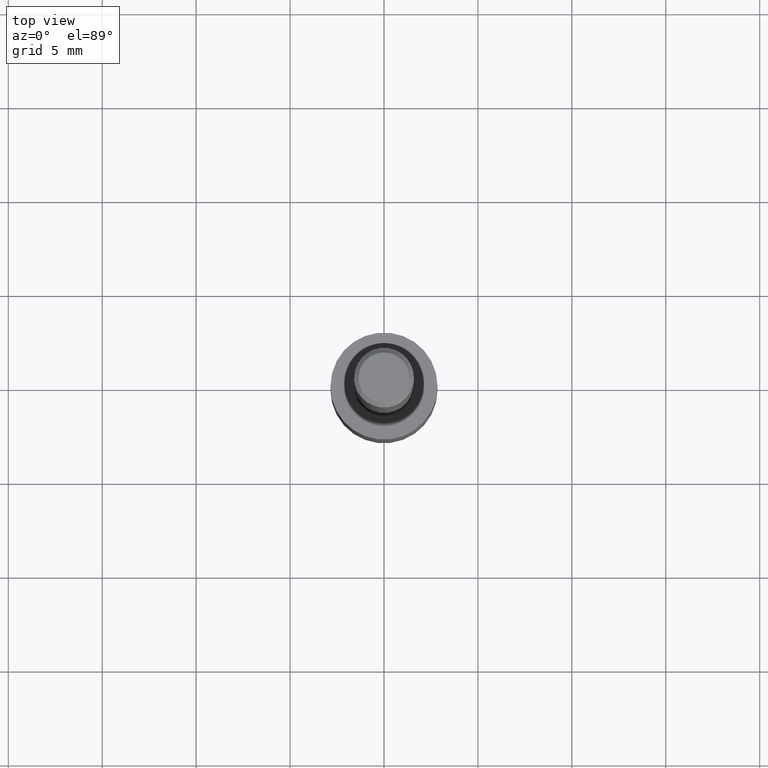
[diagram: clean part render]
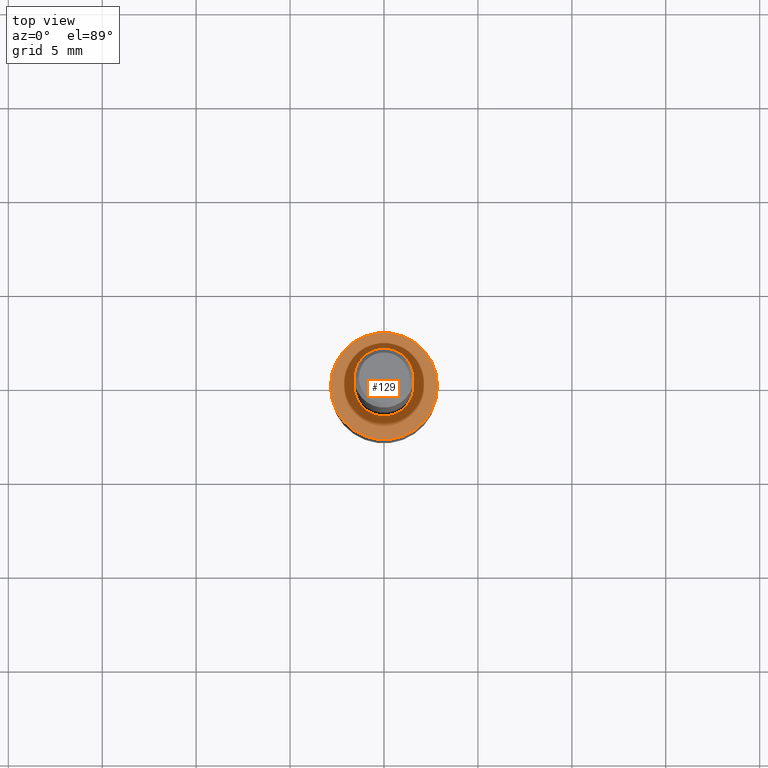
[diagram: same view with one face highlighted and labeled with its STEP entity id]
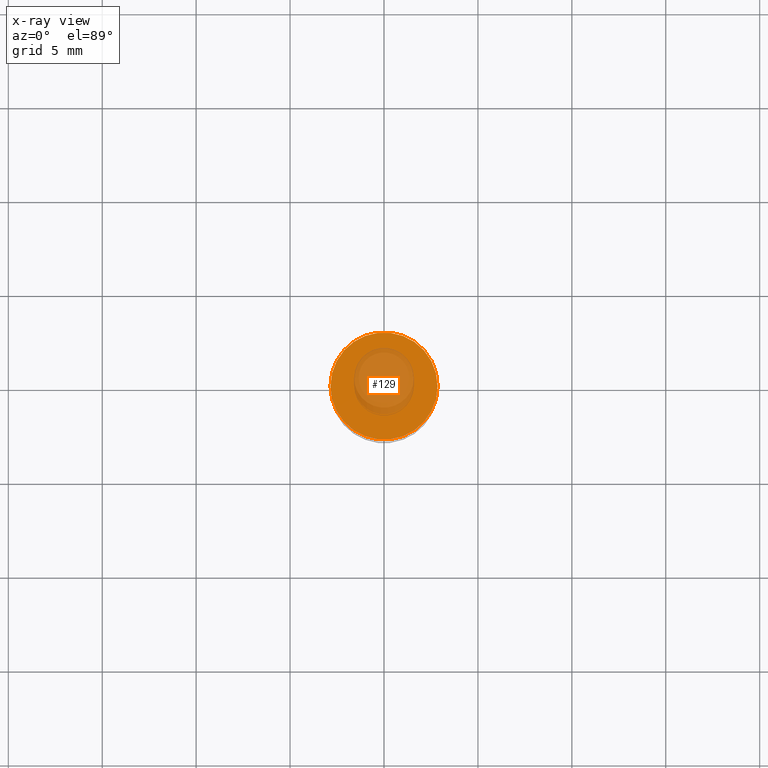
[diagram: x-ray of the same camera — body ghosted, the highlighted face saturated]
A machine part, top view. The second image highlights one B-rep face of the part: STEP entity #129.
The next image is the same camera in x-ray: the body ghosted, the highlighted face saturated — about 36% of this face is hidden behind the body in this view.
In plain terms, the highlighted planar face has unit normal (0, -0, -1).
Its self-contained STEP definition (entity closure, byte-faithful):
#25 = EDGE_LOOP ( 'NONE', ( #326, #85 ) ) ;
#29 = AXIS2_PLACEMENT_3D ( 'NONE', #280, #113, #223 ) ;
#34 = VERTEX_POINT ( 'NONE', #108 ) ;
#41 = VERTEX_POINT ( 'NONE', #159 ) ;
#69 = CARTESIAN_POINT ( 'NONE',  ( 3.295575427436013653E-29, -2.274080272147841464E-15, -1.000000000000000222 ) ) ;
#74 = DIRECTION ( 'NONE',  ( -2.445468806185136597E-29, 3.491481338843145583E-15, 1.000000000000000000 ) ) ;
#77 = CIRCLE ( 'NONE', #234, 0.1122000000000000081 ) ;
#85 = ORIENTED_EDGE ( 'NONE', *, *, #188, .T. ) ;
#94 = DIRECTION ( 'NONE',  ( 1.000000000000000000, -6.982962677686266711E-15, 0.000000000000000000 ) ) ;
#101 = AXIS2_PLACEMENT_3D ( 'NONE', #69, #325, #225 ) ;
#108 = CARTESIAN_POINT ( 'NONE',  ( -0.1122000000000000081, -3.475786062332401316E-15, -1.000000000000000222 ) ) ;
#113 = DIRECTION ( 'NONE',  ( -2.445468806185136597E-29, 3.491481338843145583E-15, 1.000000000000000000 ) ) ;
#118 = PLANE ( 'NONE',  #101 ) ;
#129 = ADVANCED_FACE ( 'NONE', ( #193 ), #118, .F. ) ;
#159 = CARTESIAN_POINT ( 'NONE',  ( 0.1122000000000000081, -4.274969751279545178E-15, -1.000000000000000222 ) ) ;
#172 = EDGE_CURVE ( 'NONE', #41, #34, #215, .T. ) ;
#188 = EDGE_CURVE ( 'NONE', #34, #41, #77, .T. ) ;
#193 = FACE_OUTER_BOUND ( 'NONE', #25, .T. ) ;
#215 = CIRCLE ( 'NONE', #29, 0.1122000000000000081 ) ;
#223 = DIRECTION ( 'NONE',  ( 1.000000000000000000, -6.982962677686266711E-15, 0.000000000000000000 ) ) ;
#225 = DIRECTION ( 'NONE',  ( -1.000000000000000000, 6.982962677686265922E-15, -4.876176775795935793E-29 ) ) ;
#234 = AXIS2_PLACEMENT_3D ( 'NONE', #308, #74, #94 ) ;
#280 = CARTESIAN_POINT ( 'NONE',  ( 2.445468806185136877E-29, -3.491481338843145977E-15, -1.000000000000000222 ) ) ;
#308 = CARTESIAN_POINT ( 'NONE',  ( 2.445468806185136877E-29, -3.491481338843145977E-15, -1.000000000000000222 ) ) ;
#325 = DIRECTION ( 'NONE',  ( 2.438088387897960049E-29, -3.491481338843145188E-15, -1.000000000000000000 ) ) ;
#326 = ORIENTED_EDGE ( 'NONE', *, *, #172, .T. ) ;